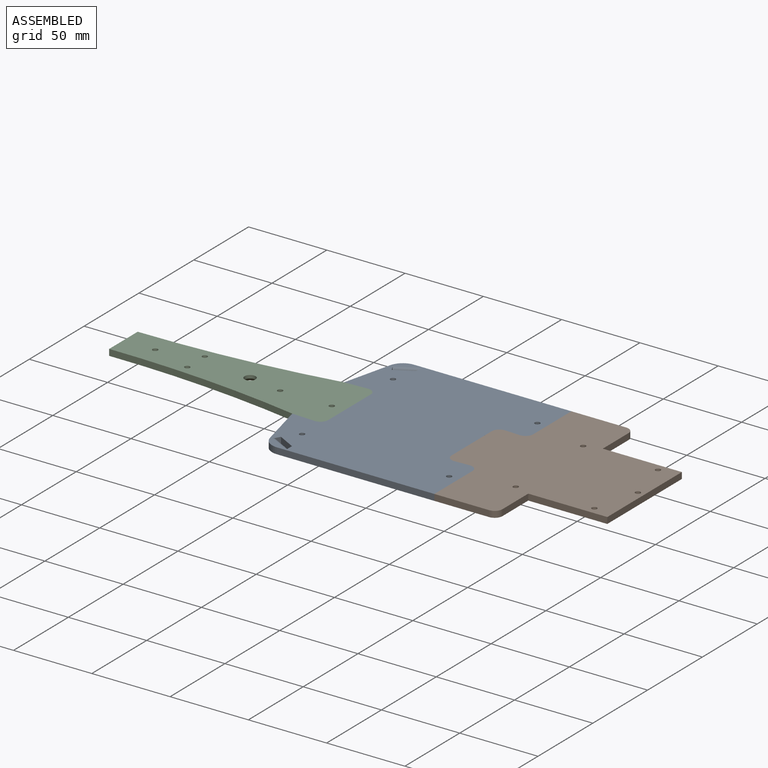
[diagram: assembled view]
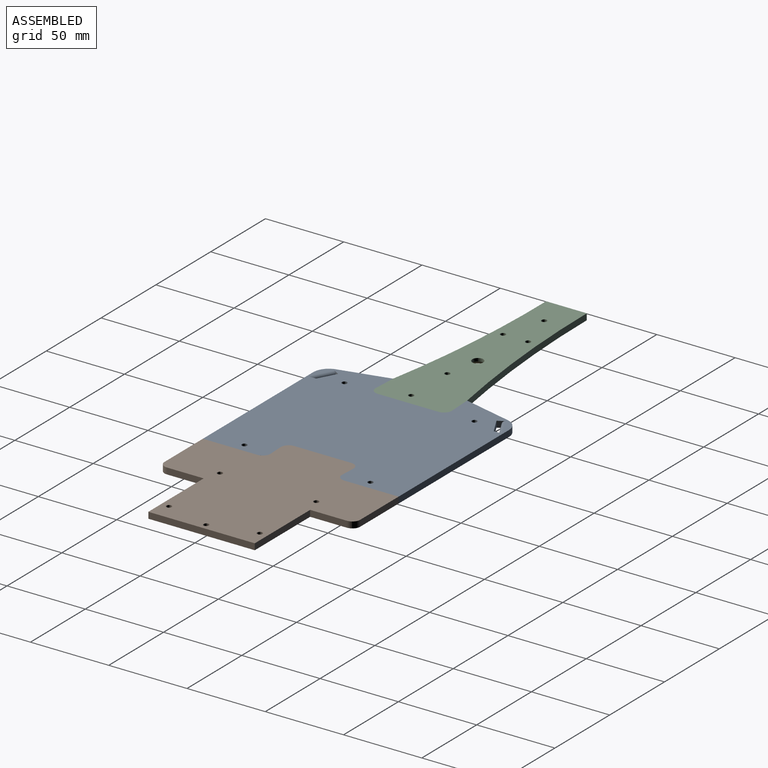
[diagram: assembled view, second angle]
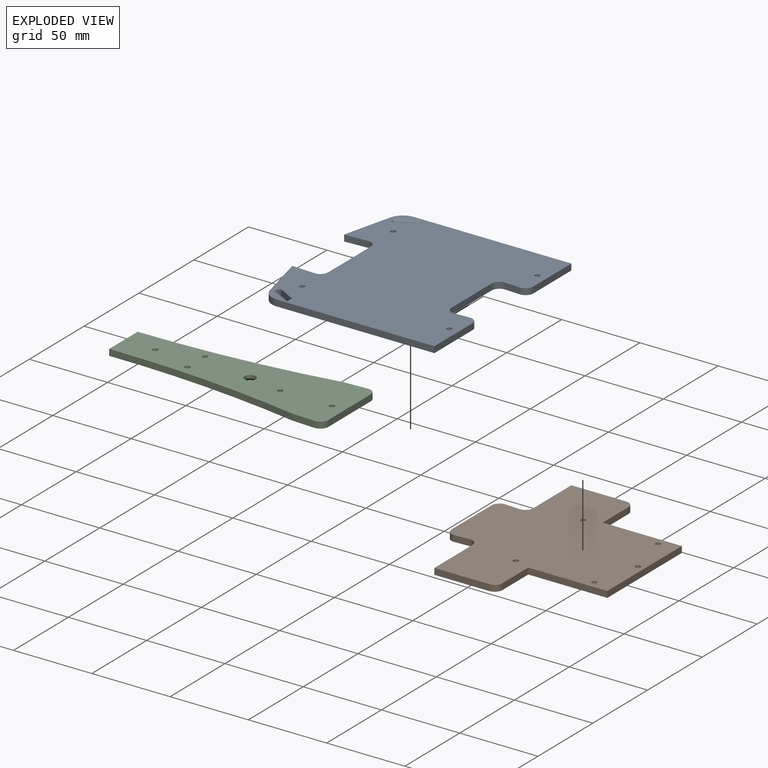
[diagram: exploded view]
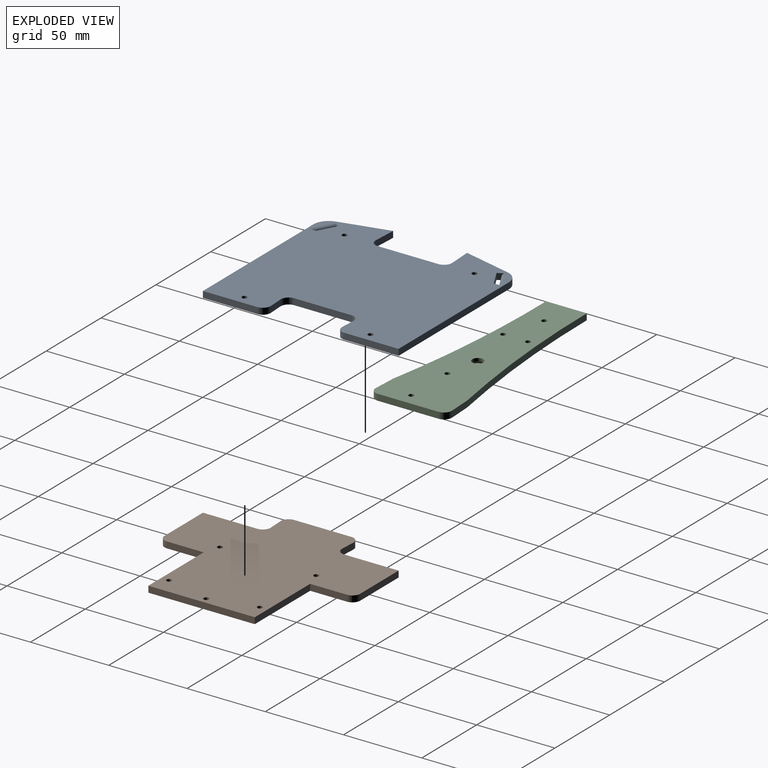
[diagram: exploded view, second angle]
ASSEMBLY  parts=3 mates=2
PART A: 38 faces, bbox 118x125x4 mm
  f0: plane 9.5x4mm, normal (-0.05,-1,0), area 38mm2, adj f24,f25,f32,f37
  f1: plane 36.49x4mm, normal (1,0,0), area 146mm2, adj f24,f25,f32,f33
  f2: plane 9.5x4mm, normal (-0.05,1,0), area 38mm2, adj f24,f25,f33,f34
  f3: plane 34.74x4mm, normal (1,0,0), area 139mm2, adj f4,f24,f25,f34
  f4: plane 100.65x4mm, normal (0,-1,0), area 402.6mm2, adj f3,f5,f24,f25
  f5: cylinder r=10mm len=9.71mm, axis (0,0,1), area 53.2mm2, adj f4,f6,f24,f25
  f6: plane 31.23x7.64mm, normal (-0.97,-0.24,0), area 128.6mm2, adj f5,f7,f24,f25
  f7: plane 14.75x4mm, normal (0.05,1,0), area 59.1mm2, adj f6,f24,f25,f35
  f8: plane 38.78x4mm, normal (-1,0,0), area 155.1mm2, adj f24,f25,f35,f36
  f9: plane 14.75x4mm, normal (0.05,-1,0), area 59.1mm2, adj f10,f24,f25,f36
  f10: plane 31.23x7.64mm, normal (-0.97,0.24,0), area 128.6mm2, adj f9,f11,f24,f25
  f11: cylinder r=10mm len=9.71mm, axis (0,0,1), area 53.2mm2, adj f10,f12,f24,f25
  f12: plane 100.65x4mm, normal (0,1,0), area 402.6mm2, adj f11,f23,f24,f25
  f13: plane 4.1x4mm, normal (0.88,-0.48,0), area 12.4mm2, adj f21,f24,f25,f26
  f14: plane 5.32x4mm, normal (-1,0,0), area 14.1mm2, adj f21,f24,f25,f26
  f15: plane 5.32x4mm, normal (-1,0,0), area 14.1mm2, adj f22,f24,f25,f27
  f16: plane 4.1x4mm, normal (0.88,0.48,0), area 12.4mm2, adj f22,f24,f25,f27
  f17: cylinder r=1.65mm len=3.3mm, axis (0,0,1), area 24.9mm2, adj f25,f30
  f18: cylinder r=1.65mm len=3.3mm, axis (0,0,1), area 24.9mm2, adj f25,f31
  f19: cylinder r=1.65mm len=3.3mm, axis (0,0,1), area 24.9mm2, adj f25,f28
  f20: cylinder r=1.65mm len=3.3mm, axis (0,0,1), area 24.9mm2, adj f25,f29
  f21: plane 11.36x6.2mm, normal (-0.48,-0.88,0), area 51.7mm2, adj f13,f14,f24,f25
  f22: plane 11.36x6.2mm, normal (-0.48,0.88,0), area 51.7mm2, adj f15,f16,f24,f25
  f23: plane 34.74x4mm, normal (1,0,0), area 139mm2, adj f12,f24,f25,f37
  f24: plane 125x118mm, normal (0,0,-1), area 12217.6mm2, adj f0,f1,f2,f3,f4,f5,f6,f7
  f25: plane 125x118mm, normal (0,0,1), area 12316.1mm2, adj f0,f1,f2,f3,f4,f5,f6,f7
  f26: cylinder r=2mm len=14.55mm, axis (-0.88,0.48,0), area 92.9mm2, adj f13,f14,f24,f25
  f27: cylinder r=2mm len=14.55mm, axis (0.88,0.48,0), area 92.9mm2, adj f15,f16,f24,f25
  f28: cone r=1.65mm half-angle=45deg, axis (0,0,-1), area 34.8mm2, adj f19,f24
  f29: cone r=1.65mm half-angle=45deg, axis (0,0,-1), area 34.8mm2, adj f20,f24
  f30: cone r=1.65mm half-angle=45deg, axis (0,0,-1), area 34.8mm2, adj f17,f24
  f31: cone r=1.65mm half-angle=45deg, axis (0,0,-1), area 34.8mm2, adj f18,f24
  f32: cylinder r=5mm len=5.25mm, axis (0,0,-1), area 32.4mm2, adj f0,f1,f24,f25
  f33: cylinder r=5mm len=5.25mm, axis (0,0,1), area 32.4mm2, adj f1,f2,f24,f25
  f34: cylinder r=5mm len=5.25mm, axis (0,0,1), area 32.4mm2, adj f2,f3,f24,f25
  f35: cylinder r=5mm len=5.25mm, axis (0,0,1), area 32.4mm2, adj f7,f8,f24,f25
  f36: cylinder r=5mm len=5.25mm, axis (0,0,-1), area 32.4mm2, adj f8,f9,f24,f25
  f37: cylinder r=5mm len=5.25mm, axis (0,0,-1), area 32.4mm2, adj f0,f23,f24,f25
PART B: 30 faces, bbox 110.5x125x4 mm
  f0: plane 50.5x4mm, normal (0,1,0), area 202mm2, adj f1,f18,f19,f20
  f1: plane 68x4mm, normal (1,0,0), area 272mm2, adj f0,f2,f19,f20
  f2: plane 50.5x4mm, normal (0,-1,0), area 202mm2, adj f1,f3,f19,f20
  f3: plane 23.5x4mm, normal (1,0,0), area 94mm2, adj f2,f4,f19,f20
  f4: cylinder r=5mm len=5mm, axis (0,0,1), area 31.4mm2, adj f3,f5,f19,f20
  f5: plane 35x4mm, normal (0,-1,0), area 140mm2, adj f4,f6,f19,f20
  f6: plane 34.74x4mm, normal (-1,0,0), area 139mm2, adj f5,f19,f20,f26
  f7: plane 9.5x4mm, normal (0.05,-1,0), area 38mm2, adj f19,f20,f26,f27
  f8: plane 36.49x4mm, normal (-1,0,0), area 146mm2, adj f19,f20,f27,f28
  f9: plane 9.5x4mm, normal (0.05,1,0), area 38mm2, adj f19,f20,f28,f29
  f10: plane 34.74x4mm, normal (-1,0,0), area 139mm2, adj f11,f19,f20,f29
  f11: plane 35x4mm, normal (0,1,0), area 140mm2, adj f10,f12,f19,f20
  f12: cylinder r=5mm len=5mm, axis (0,0,1), area 31.4mm2, adj f11,f18,f19,f20
  f13: cylinder r=1.65mm len=3.3mm, axis (0,0,1), area 24.9mm2, adj f20,f25
  f14: cylinder r=1.65mm len=3.3mm, axis (0,0,1), area 24.9mm2, adj f20,f21
  f15: cylinder r=1.65mm len=3.3mm, axis (0,0,1), area 24.9mm2, adj f20,f22
  f16: cylinder r=1.65mm len=3.3mm, axis (0,0,1), area 24.9mm2, adj f20,f23
  f17: cylinder r=1.65mm len=3.3mm, axis (0,0,1), area 24.9mm2, adj f20,f24
  f18: plane 23.5x4mm, normal (1,0,0), area 94mm2, adj f0,f12,f19,f20
  f19: plane 125x110.5mm, normal (0,0,-1), area 9177.4mm2, adj f0,f1,f2,f3,f4,f5,f6,f7
  f20: plane 125x110.5mm, normal (0,0,1), area 9300.5mm2, adj f0,f1,f2,f3,f4,f5,f6,f7
  f21: cone r=1.65mm half-angle=45deg, axis (0,0,-1), area 34.8mm2, adj f14,f19
  f22: cone r=1.65mm half-angle=45deg, axis (0,0,-1), area 34.8mm2, adj f15,f19
  f23: cone r=1.65mm half-angle=45deg, axis (0,0,-1), area 34.8mm2, adj f16,f19
  f24: cone r=1.65mm half-angle=45deg, axis (0,0,-1), area 34.8mm2, adj f17,f19
  f25: cone r=1.65mm half-angle=45deg, axis (0,0,-1), area 34.8mm2, adj f13,f19
  f26: cylinder r=5mm len=5.25mm, axis (0,0,1), area 32.4mm2, adj f6,f7,f19,f20
  f27: cylinder r=5mm len=5.25mm, axis (0,0,1), area 32.4mm2, adj f7,f8,f19,f20
  f28: cylinder r=5mm len=5.25mm, axis (0,0,-1), area 32.4mm2, adj f8,f9,f19,f20
  f29: cylinder r=5mm len=5.25mm, axis (0,0,1), area 32.4mm2, adj f9,f10,f19,f20
PART C: 22 faces, bbox 144.4x48.8x4 mm
  f0: plane 25.99x4mm, normal (-1,0,0), area 104mm2, adj f1,f10,f12,f13
  f1: cylinder r=718.52mm len=124.4mm, axis (0,0,1), area 500.1mm2, adj f0,f2,f12,f13
  f2: plane 14.75x4mm, normal (-0.05,1,0), area 59.1mm2, adj f1,f12,f13,f20
  f3: plane 38.78x4mm, normal (1,0,0), area 155.1mm2, adj f12,f13,f20,f21
  f4: plane 14.75x4mm, normal (-0.05,-1,0), area 59.1mm2, adj f10,f12,f13,f21
  f5: cylinder r=1.65mm len=3.3mm, axis (0,0,1), area 24.9mm2, adj f13,f15
  f6: cylinder r=3.5mm len=7mm, axis (0,0,1), area 44mm2, adj f13,f19
  f7: cylinder r=1.65mm len=3.3mm, axis (0,0,1), area 24.9mm2, adj f13,f17
  f8: cylinder r=1.65mm len=3.3mm, axis (0,0,1), area 24.9mm2, adj f13,f16
  f9: cylinder r=1.65mm len=3.3mm, axis (0,0,1), area 24.9mm2, adj f13,f18
  f10: cylinder r=660.24mm len=124.4mm, axis (0,0,1), area 500.2mm2, adj f0,f4,f12,f13
  f11: cylinder r=1.65mm len=3.3mm, axis (0,0,1), area 24.9mm2, adj f13,f14
  f12: plane 144.4x48.78mm, normal (0,0,-1), area 4778.3mm2, adj f0,f1,f2,f3,f4,f10,f14,f15
  f13: plane 144.4x48.78mm, normal (0,0,1), area 4958mm2, adj f0,f1,f2,f3,f4,f5,f6,f7
  f14: cone r=1.65mm half-angle=45deg, axis (0,0,-1), area 34.8mm2, adj f11,f12
  f15: cone r=1.65mm half-angle=45deg, axis (0,0,-1), area 34.8mm2, adj f5,f12
  f16: cone r=1.65mm half-angle=45deg, axis (0,0,-1), area 34.8mm2, adj f8,f12
  f17: cone r=1.65mm half-angle=45deg, axis (0,0,-1), area 34.8mm2, adj f7,f12
  f18: cone r=1.65mm half-angle=45deg, axis (0,0,-1), area 34.8mm2, adj f9,f12
  f19: cone r=3.5mm half-angle=45deg, axis (0,0,-1), area 80mm2, adj f6,f12
  f20: cylinder r=5mm len=5.25mm, axis (0,0,1), area 32.4mm2, adj f2,f3,f12,f13
  f21: cylinder r=5mm len=5.25mm, axis (0,0,-1), area 32.4mm2, adj f3,f4,f12,f13
PLACE A t=(-214.29,86.4,-7.17)mm fixed
PLACE B t=(-214.29,86.4,-7.17)mm
PLACE C t=(-214.29,86.4,-7.17)mm
MATE planar C.f13 <-> A.f25  axis (0,0,1) through (-214.64,-94,13.11)mm
MATE planar A.f25 <-> B.f20  axis (0,0,1) through (-136.64,-94,13.11)mm
